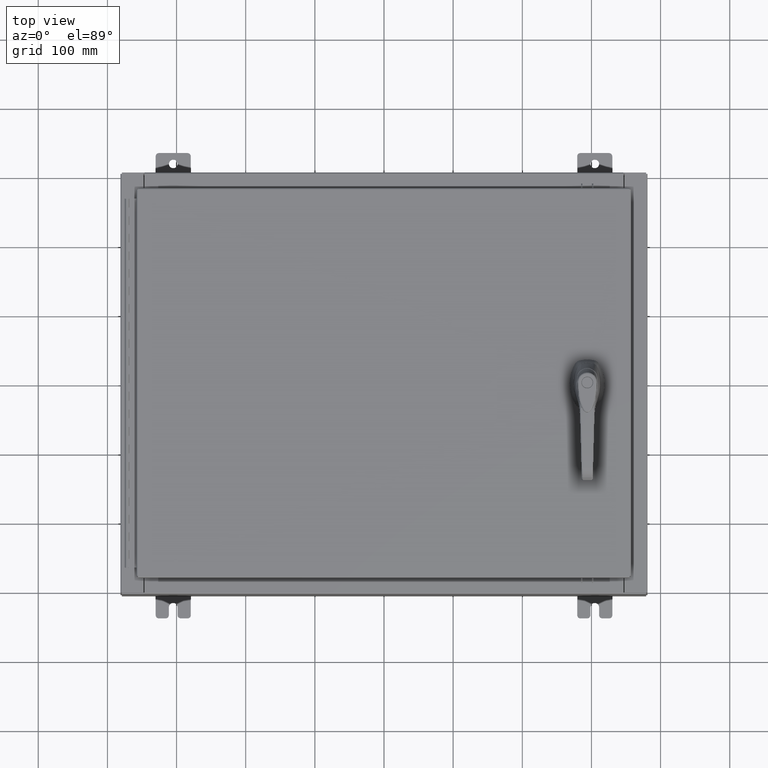
[diagram: clean part render]
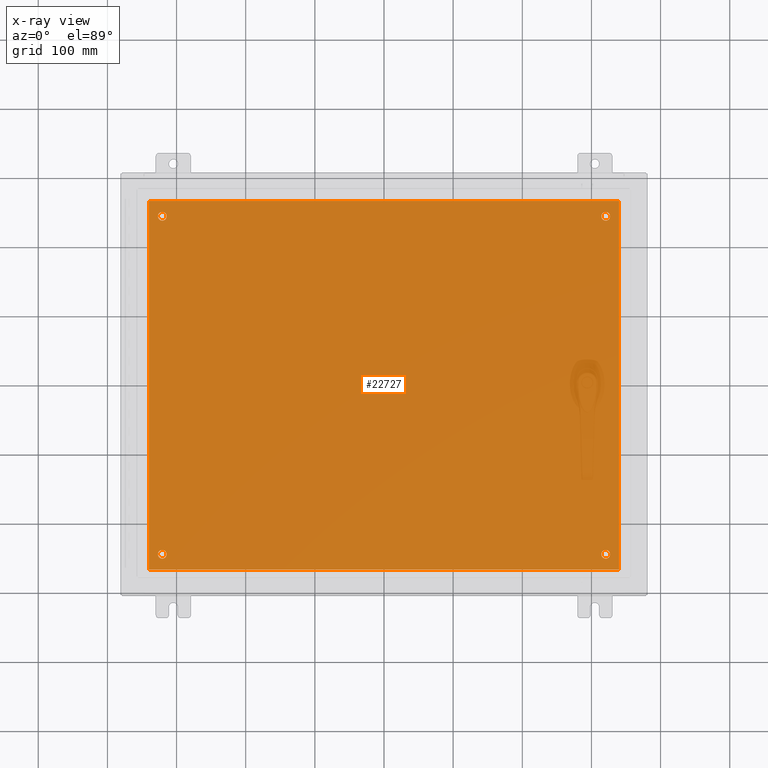
[diagram: x-ray — body ghosted, one internal face saturated and labeled with its STEP entity id]
A machine part, top view, then the same camera in x-ray: the body is ghosted and one INTERNAL B-rep face — a face not visible from any outside direction — is saturated and labeled: STEP entity #22727.
In plain terms, the highlighted planar face has unit normal (0, 0, -1).
Its self-contained STEP definition (entity closure, byte-faithful):
#527 = DIRECTION ( 'NONE',  ( -0.0000000000000000000, -0.0000000000000000000, 1.000000000000000000 ) ) ;
#783 = DIRECTION ( 'NONE',  ( -0.0000000000000000000, -0.0000000000000000000, 1.000000000000000000 ) ) ;
#2310 = AXIS2_PLACEMENT_3D ( 'NONE', #52424, #527, #61139 ) ;
#2634 = VERTEX_POINT ( 'NONE', #53788 ) ;
#2803 = CARTESIAN_POINT ( 'NONE',  ( -12.87499999999999600, 9.625000000000001800, -0.1039999999999999800 ) ) ;
#2895 = CARTESIAN_POINT ( 'NONE',  ( 12.87499999999999600, -9.625000000000001800, -0.1039999999999999800 ) ) ;
#3771 = ORIENTED_EDGE ( 'NONE', *, *, #99930, .T. ) ;
#4060 = CARTESIAN_POINT ( 'NONE',  ( -12.87499999999999600, -9.625000000000001800, -0.1039999999999999800 ) ) ;
#4231 = ORIENTED_EDGE ( 'NONE', *, *, #108221, .T. ) ;
#4808 = VERTEX_POINT ( 'NONE', #29095 ) ;
#5064 = VECTOR ( 'NONE', #10356, 39.37007874015748100 ) ;
#7071 = EDGE_CURVE ( 'NONE', #54904, #78595, #14375, .T. ) ;
#7759 = EDGE_CURVE ( 'NONE', #2634, #25891, #63103, .T. ) ;
#7783 = AXIS2_PLACEMENT_3D ( 'NONE', #31896, #92539, #40668 ) ;
#7813 = LINE ( 'NONE', #96692, #5064 ) ;
#8679 = EDGE_LOOP ( 'NONE', ( #3771, #35295 ) ) ;
#10356 = DIRECTION ( 'NONE',  ( 1.000000000000000000, 0.0000000000000000000, 0.0000000000000000000 ) ) ;
#10469 = VERTEX_POINT ( 'NONE', #2895 ) ;
#10533 = DIRECTION ( 'NONE',  ( -0.0000000000000000000, -0.0000000000000000000, 1.000000000000000000 ) ) ;
#10835 = FACE_BOUND ( 'NONE', #8679, .T. ) ;
#11463 = CIRCLE ( 'NONE', #72142, 0.2499999999999987000 ) ;
#11730 = LINE ( 'NONE', #107853, #31971 ) ;
#14375 = LINE ( 'NONE', #27072, #57726 ) ;
#17917 = AXIS2_PLACEMENT_3D ( 'NONE', #30946, #91568, #39681 ) ;
#19536 = AXIS2_PLACEMENT_3D ( 'NONE', #33714, #94290, #42429 ) ;
#21149 = DIRECTION ( 'NONE',  ( -1.000000000000000000, -0.0000000000000000000, -0.0000000000000000000 ) ) ;
#21487 = DIRECTION ( 'NONE',  ( 0.0000000000000000000, 0.0000000000000000000, -1.000000000000000000 ) ) ;
#22683 = ORIENTED_EDGE ( 'NONE', *, *, #7071, .F. ) ;
#22727 = ADVANCED_FACE ( 'NONE', ( #10835, #77229, #100219, #56872, #31078 ), #47630, .T. ) ;
#25798 = CIRCLE ( 'NONE', #48725, 0.2499999999999987000 ) ;
#25891 = VERTEX_POINT ( 'NONE', #43307 ) ;
#26396 = VERTEX_POINT ( 'NONE', #79291 ) ;
#26431 = EDGE_CURVE ( 'NONE', #78595, #2634, #7813, .T. ) ;
#27072 = CARTESIAN_POINT ( 'NONE',  ( -13.38299999999999900, 10.50000000000000400, -0.1040000000000041900 ) ) ;
#29095 = CARTESIAN_POINT ( 'NONE',  ( -12.37499999999999800, -9.625000000000001800, -0.1039999999999999800 ) ) ;
#30946 = CARTESIAN_POINT ( 'NONE',  ( -12.62499999999999800, -9.625000000000001800, -0.1039999999999999800 ) ) ;
#31078 = FACE_OUTER_BOUND ( 'NONE', #90398, .T. ) ;
#31896 = CARTESIAN_POINT ( 'NONE',  ( 12.62499999999999800, 9.625000000000001800, -0.1039999999999999800 ) ) ;
#31971 = VECTOR ( 'NONE', #21149, 39.37007874015748100 ) ;
#33714 = CARTESIAN_POINT ( 'NONE',  ( -12.62499999999999800, 9.625000000000001800, -0.1039999999999999800 ) ) ;
#34065 = AXIS2_PLACEMENT_3D ( 'NONE', #90823, #21487, #108191 ) ;
#35295 = ORIENTED_EDGE ( 'NONE', *, *, #108554, .T. ) ;
#35425 = DIRECTION ( 'NONE',  ( 0.0000000000000000000, -1.000000000000000000, 0.0000000000000000000 ) ) ;
#35599 = EDGE_CURVE ( 'NONE', #99785, #45949, #52862, .T. ) ;
#39681 = DIRECTION ( 'NONE',  ( -1.000000000000000000, 0.0000000000000000000, 0.0000000000000000000 ) ) ;
#40024 = VECTOR ( 'NONE', #70092, 39.37007874015748100 ) ;
#40668 = DIRECTION ( 'NONE',  ( -1.000000000000000000, 0.0000000000000000000, 0.0000000000000000000 ) ) ;
#42429 = DIRECTION ( 'NONE',  ( -1.000000000000000000, 0.0000000000000000000, 0.0000000000000000000 ) ) ;
#43307 = CARTESIAN_POINT ( 'NONE',  ( 13.38300000000000400, 10.50000000000000200, -0.1039999999999999800 ) ) ;
#43900 = DIRECTION ( 'NONE',  ( -0.0000000000000000000, -0.0000000000000000000, 1.000000000000000000 ) ) ;
#45411 = DIRECTION ( 'NONE',  ( -0.0000000000000000000, -0.0000000000000000000, 1.000000000000000000 ) ) ;
#45949 = VERTEX_POINT ( 'NONE', #2803 ) ;
#47630 = PLANE ( 'NONE',  #34065 ) ;
#48725 = AXIS2_PLACEMENT_3D ( 'NONE', #52668, #783, #61381 ) ;
#51729 = EDGE_CURVE ( 'NONE', #25891, #54904, #11730, .T. ) ;
#52424 = CARTESIAN_POINT ( 'NONE',  ( 12.62499999999999800, -9.625000000000001800, -0.1039999999999999800 ) ) ;
#52668 = CARTESIAN_POINT ( 'NONE',  ( -12.62499999999999800, -9.625000000000001800, -0.1039999999999999800 ) ) ;
#52862 = CIRCLE ( 'NONE', #54357, 0.2499999999999987000 ) ;
#53788 = CARTESIAN_POINT ( 'NONE',  ( 13.38300000000000100, -10.50000000000000000, -0.1039999999999999800 ) ) ;
#54074 = CIRCLE ( 'NONE', #7783, 0.2499999999999987000 ) ;
#54357 = AXIS2_PLACEMENT_3D ( 'NONE', #97291, #45411, #105987 ) ;
#54715 = AXIS2_PLACEMENT_3D ( 'NONE', #95766, #43900, #104478 ) ;
#54904 = VERTEX_POINT ( 'NONE', #65363 ) ;
#55972 = CARTESIAN_POINT ( 'NONE',  ( -13.38299999999999900, -10.50000000000000000, -0.1040000000000041900 ) ) ;
#56357 = ORIENTED_EDGE ( 'NONE', *, *, #35599, .T. ) ;
#56872 = FACE_BOUND ( 'NONE', #77914, .T. ) ;
#57626 = CIRCLE ( 'NONE', #19536, 0.2499999999999987000 ) ;
#57726 = VECTOR ( 'NONE', #35425, 39.37007874015748100 ) ;
#57832 = VERTEX_POINT ( 'NONE', #4060 ) ;
#61139 = DIRECTION ( 'NONE',  ( -1.000000000000000000, 0.0000000000000000000, 0.0000000000000000000 ) ) ;
#61381 = DIRECTION ( 'NONE',  ( -1.000000000000000000, 0.0000000000000000000, 0.0000000000000000000 ) ) ;
#61919 = ORIENTED_EDGE ( 'NONE', *, *, #85404, .T. ) ;
#62435 = CARTESIAN_POINT ( 'NONE',  ( 12.62499999999999800, 9.625000000000001800, -0.1039999999999999800 ) ) ;
#63103 = LINE ( 'NONE', #95790, #40024 ) ;
#65363 = CARTESIAN_POINT ( 'NONE',  ( -13.38299999999999900, 10.50000000000000200, -0.1040000000000041900 ) ) ;
#70092 = DIRECTION ( 'NONE',  ( 0.0000000000000000000, 1.000000000000000000, 0.0000000000000000000 ) ) ;
#70983 = CIRCLE ( 'NONE', #17917, 0.2499999999999987000 ) ;
#71153 = DIRECTION ( 'NONE',  ( -1.000000000000000000, 0.0000000000000000000, 0.0000000000000000000 ) ) ;
#72142 = AXIS2_PLACEMENT_3D ( 'NONE', #62435, #10533, #71153 ) ;
#72711 = VERTEX_POINT ( 'NONE', #95578 ) ;
#73192 = EDGE_LOOP ( 'NONE', ( #4231, #105743 ) ) ;
#73800 = EDGE_CURVE ( 'NONE', #72711, #86301, #11463, .T. ) ;
#77229 = FACE_BOUND ( 'NONE', #73192, .T. ) ;
#77914 = EDGE_LOOP ( 'NONE', ( #56357, #96859 ) ) ;
#78595 = VERTEX_POINT ( 'NONE', #55972 ) ;
#79291 = CARTESIAN_POINT ( 'NONE',  ( 12.37499999999999800, -9.625000000000001800, -0.1039999999999999800 ) ) ;
#80971 = CIRCLE ( 'NONE', #54715, 0.2499999999999987000 ) ;
#83410 = ORIENTED_EDGE ( 'NONE', *, *, #7759, .F. ) ;
#85404 = EDGE_CURVE ( 'NONE', #86301, #72711, #54074, .T. ) ;
#86301 = VERTEX_POINT ( 'NONE', #89024 ) ;
#89024 = CARTESIAN_POINT ( 'NONE',  ( 12.87499999999999600, 9.625000000000001800, -0.1039999999999999800 ) ) ;
#89356 = EDGE_CURVE ( 'NONE', #45949, #99785, #57626, .T. ) ;
#90398 = EDGE_LOOP ( 'NONE', ( #98909, #22683, #108259, #83410 ) ) ;
#90488 = CARTESIAN_POINT ( 'NONE',  ( -12.37499999999999800, 9.625000000000001800, -0.1039999999999999800 ) ) ;
#90823 = CARTESIAN_POINT ( 'NONE',  ( 0.0000000000000000000, 0.0000000000000000000, -0.1039999999999999800 ) ) ;
#91568 = DIRECTION ( 'NONE',  ( -0.0000000000000000000, -0.0000000000000000000, 1.000000000000000000 ) ) ;
#92539 = DIRECTION ( 'NONE',  ( -0.0000000000000000000, -0.0000000000000000000, 1.000000000000000000 ) ) ;
#94290 = DIRECTION ( 'NONE',  ( -0.0000000000000000000, -0.0000000000000000000, 1.000000000000000000 ) ) ;
#95578 = CARTESIAN_POINT ( 'NONE',  ( 12.37499999999999800, 9.625000000000001800, -0.1039999999999999800 ) ) ;
#95657 = EDGE_CURVE ( 'NONE', #26396, #10469, #80971, .T. ) ;
#95766 = CARTESIAN_POINT ( 'NONE',  ( 12.62499999999999800, -9.625000000000001800, -0.1039999999999999800 ) ) ;
#95790 = CARTESIAN_POINT ( 'NONE',  ( 13.38300000000000300, -10.50000000000000200, -0.1040000000000009100 ) ) ;
#96692 = CARTESIAN_POINT ( 'NONE',  ( -13.49999999999999500, -10.50000000000000000, -0.1039999999999999800 ) ) ;
#96859 = ORIENTED_EDGE ( 'NONE', *, *, #89356, .T. ) ;
#97291 = CARTESIAN_POINT ( 'NONE',  ( -12.62499999999999800, 9.625000000000001800, -0.1039999999999999800 ) ) ;
#97416 = EDGE_LOOP ( 'NONE', ( #61919, #100554 ) ) ;
#98909 = ORIENTED_EDGE ( 'NONE', *, *, #26431, .F. ) ;
#99785 = VERTEX_POINT ( 'NONE', #90488 ) ;
#99930 = EDGE_CURVE ( 'NONE', #4808, #57832, #70983, .T. ) ;
#100219 = FACE_BOUND ( 'NONE', #97416, .T. ) ;
#100554 = ORIENTED_EDGE ( 'NONE', *, *, #73800, .T. ) ;
#104478 = DIRECTION ( 'NONE',  ( -1.000000000000000000, 0.0000000000000000000, 0.0000000000000000000 ) ) ;
#105743 = ORIENTED_EDGE ( 'NONE', *, *, #95657, .T. ) ;
#105987 = DIRECTION ( 'NONE',  ( -1.000000000000000000, 0.0000000000000000000, 0.0000000000000000000 ) ) ;
#107853 = CARTESIAN_POINT ( 'NONE',  ( -13.50000000000000000, 10.50000000000000200, -0.1039999999999999800 ) ) ;
#108191 = DIRECTION ( 'NONE',  ( -1.000000000000000000, 0.0000000000000000000, -0.0000000000000000000 ) ) ;
#108221 = EDGE_CURVE ( 'NONE', #10469, #26396, #111242, .T. ) ;
#108259 = ORIENTED_EDGE ( 'NONE', *, *, #51729, .F. ) ;
#108554 = EDGE_CURVE ( 'NONE', #57832, #4808, #25798, .T. ) ;
#111242 = CIRCLE ( 'NONE', #2310, 0.2499999999999987000 ) ;